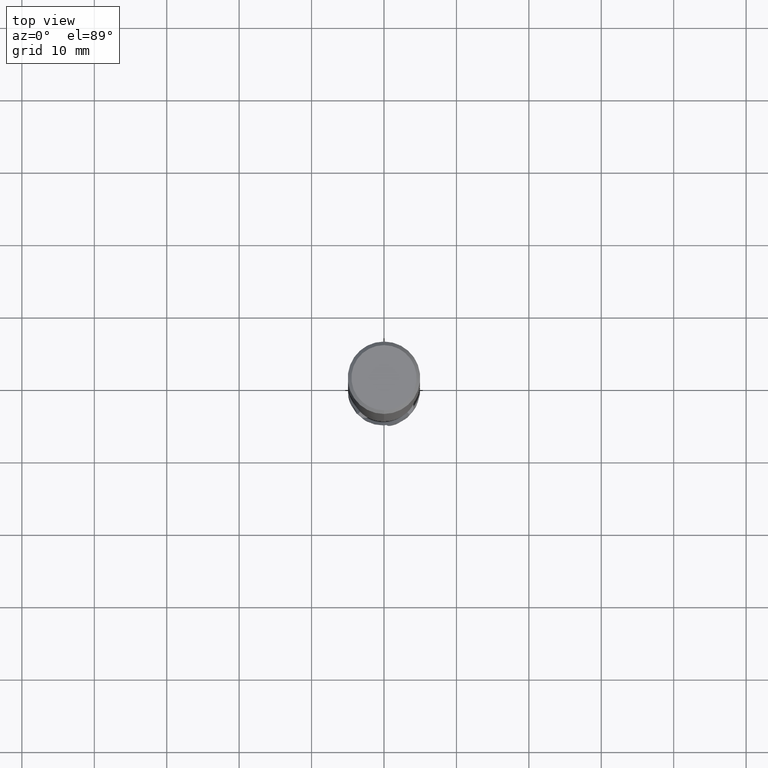
[diagram: clean part render]
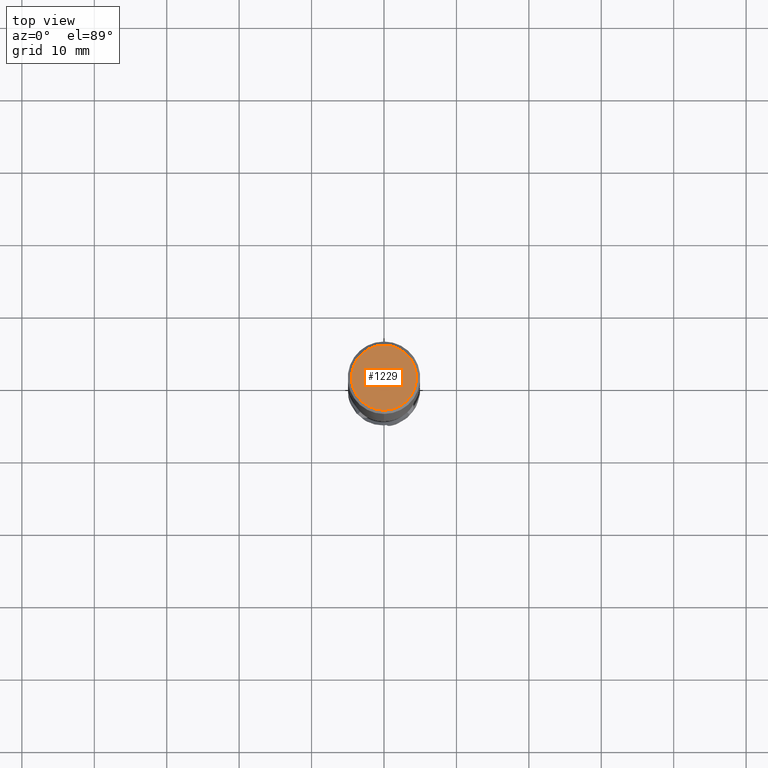
[diagram: same view with one face highlighted and labeled with its STEP entity id]
A machine part, top view. The second image highlights one B-rep face of the part: STEP entity #1229.
In plain terms, the highlighted planar face has unit normal (-0, 0, 1).
Its self-contained STEP definition (entity closure, byte-faithful):
#771=EDGE_CURVE('',#1197,#1367,#1823,.T.);
#1197=VERTEX_POINT('',#2289);
#1211=EDGE_CURVE('',#1367,#1197,#2304,.T.);
#1229=ADVANCED_FACE('',(#2325),#2326,.T.);
#1367=VERTEX_POINT('',#2476);
#1823=CIRCLE('',#4590,4.5);
#2289=CARTESIAN_POINT('',(5.5107285922007E-016,-4.5,0.0));
#2304=CIRCLE('',#8204,4.5);
#2325=FACE_OUTER_BOUND('',#8506,.T.);
#2326=PLANE('',#8507);
#2476=CARTESIAN_POINT('',(0.0,4.5,0.0));
#4590=AXIS2_PLACEMENT_3D('',#10852,#10853,#10854);
#8204=AXIS2_PLACEMENT_3D('',#11303,#11304,#11305);
#8506=EDGE_LOOP('',(#11332,#11333));
#8507=AXIS2_PLACEMENT_3D('',#11334,#11335,#11336);
#10852=CARTESIAN_POINT('',(0.0,0.0,0.0));
#10853=DIRECTION('',(0.0,0.0,-1.0));
#10854=DIRECTION('',(0.0,1.0,0.0));
#11303=CARTESIAN_POINT('',(0.0,0.0,0.0));
#11304=DIRECTION('',(0.0,0.0,-1.0));
#11305=DIRECTION('',(0.0,1.0,0.0));
#11332=ORIENTED_EDGE('',*,*,#1211,.F.);
#11333=ORIENTED_EDGE('',*,*,#771,.F.);
#11334=CARTESIAN_POINT('',(0.0,2.25,0.0));
#11335=DIRECTION('',(-0.0,0.0,1.0));
#11336=DIRECTION('',(0.0,-1.0,0.0));